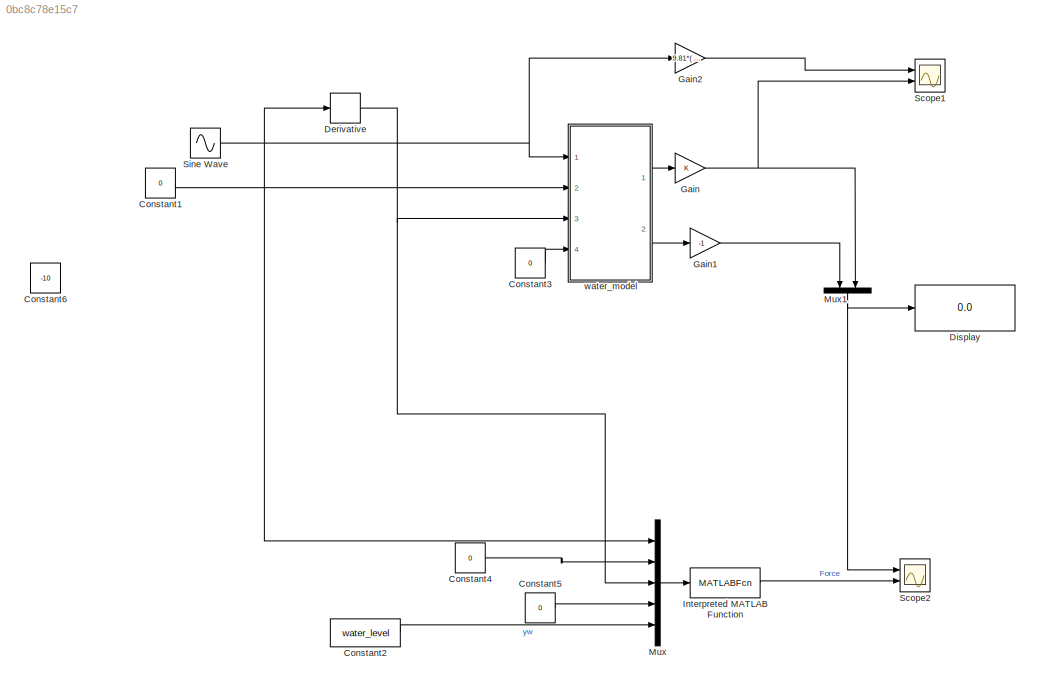
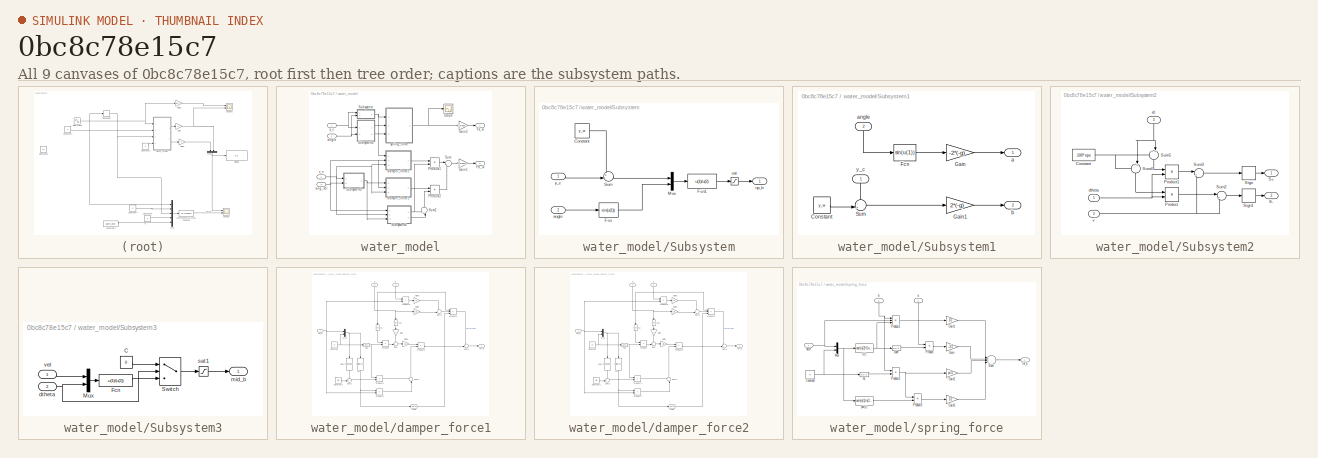
[diagram: thumbnail index - all 9 canvases of the model, root first then tree order]
MODEL slx_0bc8c78e15c7
KIND model
BLOCK [Constant] Constant1
  Value = 0
BLOCK [Constant] Constant2
  Value = water_level
BLOCK [Constant] Constant3
  Value = 0
BLOCK [Constant] Constant4
  Value = 0
BLOCK [Constant] Constant5
  Value = 0
BLOCK [Constant] Constant6
  Value = -10
BLOCK [Derivative] Derivative
BLOCK [Display] Display
  Decimation = 1
  Lockdown = off
  Ports = [1]
BLOCK [Gain] Gain
  OutDataTypeStr = Inherit: Inherit via internal rule
  ParamDataTypeStr = Inherit: Inherit via internal rule
  SaturateOnIntegerOverflow = off
BLOCK [Gain] Gain1
  Gain = -1
  OutDataTypeStr = Inherit: Inherit via internal rule
  ParamDataTypeStr = Inherit: Inherit via internal rule
  SaturateOnIntegerOverflow = off
BLOCK [Gain] Gain2
  Gain = 9.81*( pi*0.02^2 )*( 1000*0.703)
  OutDataTypeStr = Inherit: Inherit via internal rule
  ParamDataTypeStr = Inherit: Inherit via internal rule
  SaturateOnIntegerOverflow = off
BLOCK [MATLABFcn] Interpreted MATLAB Function
  MATLABFcn = p_water_model
  OutputDimensions = 2
  Ports = [1, 1]
BLOCK [Mux] Mux
  DisplayOption = bar
  Inputs = 5
  Ports = [5, 1]
BLOCK [Mux] Mux1
  DisplayOption = bar
  Inputs = 2
  Ports = [2, 1]
BLOCK [Scope] Scope1
  DataFormat = StructureWithTime
  Floating = off
  LegendLocations = 0.84035     0.90797     0.10969    0.025577\n0.84162     0.41782     0.10204    0.025577
  LimitDataPoints = off
  NumInputPorts = 2
  Ports = [2]
  SampleTime = 0
  ShowLegends = on
  YMax = 0.2~0
  YMin = 0.025~-0.017
BLOCK [Scope] Scope2
  DataFormat = StructureWithTime
  Floating = off
  LegendLocations = 0.86832     0.90842     0.05375     0.04439\n0.87219     0.41846     0.05875     0.04439
  LimitDataPoints = off
  NumInputPorts = 2
  Ports = [2]
  SampleTime = 0
  SaveName = ScopeData4
  ShowLegends = on
  TimeRange = 10
  YMax = 90~1
  YMin = -0~-1
BLOCK [Sin] Sine Wave
  Amplitude = 0.03
  Frequency = 50
  Ports = [0, 1]
  SampleTime = 0
BLOCK [SubSystem] water_model
  AncestorBlock = WaterRunner_lib/water_model
  FunctionWithSeparateData = off
  MaskHideContents = off
  MinAlgLoopOccurrences = off
  Opaque = off
  Ports = [4, 2]
  PropExecContextOutsideSubsystem = off
  RTWSystemCode = Auto
  RequestExecContextInheritance = off
BLOCK [Outport] water_model/Fb_w
  IconDisplay = Port number
  Port = 2
BLOCK [Outport] water_model/Fk_w
  IconDisplay = Port number
BLOCK [Gain] water_model/Gain1
  Gain = Cd*density
  OutDataTypeStr = Inherit: Inherit via internal rule
  ParamDataTypeStr = Inherit: Inherit via internal rule
  SaturateOnIntegerOverflow = off
BLOCK [Gain] water_model/Gain2
  Gain = Cd*density
  OutDataTypeStr = Inherit: Inherit via internal rule
  ParamDataTypeStr = Inherit: Inherit via internal rule
  SaturateOnIntegerOverflow = off
BLOCK [Product] water_model/Product1
  InputSameDT = off
  OutDataTypeStr = Inherit: Inherit via internal rule
  Ports = [2, 1]
  SaturateOnIntegerOverflow = off
BLOCK [Product] water_model/Product2
  InputSameDT = off
  OutDataTypeStr = Inherit: Inherit via internal rule
  Ports = [2, 1]
  SaturateOnIntegerOverflow = off
BLOCK [Scope] water_model/Scope
  DataFormat = StructureWithTime
  Floating = off
  NumInputPorts = 1
  Ports = [1]
  SampleTime = 0
  SaveName = ScopeData4
  ShowLegends = off
BLOCK [SubSystem] water_model/Subsystem
  FunctionWithSeparateData = off
  MaskHideContents = off
  MinAlgLoopOccurrences = off
  Opaque = off
  Ports = [2, 1]
  PropExecContextOutsideSubsystem = off
  RTWSystemCode = Auto
  RequestExecContextInheritance = off
BLOCK [Constant] water_model/Subsystem/Constant
  Value = y_w
BLOCK [Fcn] water_model/Subsystem/Fcn
  Expr = sin(u(1))
BLOCK [Fcn] water_model/Subsystem/Fcn1
  Expr = u(1)/u(2)
BLOCK [Mux] water_model/Subsystem/Mux
  DisplayOption = bar
  Inputs = 2
  Ports = [2, 1]
BLOCK [Sum] water_model/Subsystem/Sum
  IconShape = round
  InputSameDT = off
  Inputs = +-|
  OutDataTypeStr = Inherit: Inherit via internal rule
  Ports = [2, 1]
  SaturateOnIntegerOverflow = off
BLOCK [Inport] water_model/Subsystem/angle
  IconDisplay = Port number
  Port = 2
BLOCK [Saturate] water_model/Subsystem/sat
  InputPortMap = u0
  LowerLimit = -R
  Ports = [1, 1]
  UpperLimit = R
BLOCK [Outport] water_model/Subsystem/up_b
  IconDisplay = Port number
BLOCK [Inport] water_model/Subsystem/y_c
  IconDisplay = Port number
BLOCK [SubSystem] water_model/Subsystem1
  FunctionWithSeparateData = off
  MaskHideContents = off
  MinAlgLoopOccurrences = off
  Opaque = off
  Ports = [2, 2]
  PropExecContextOutsideSubsystem = off
  RTWSystemCode = Auto
  RequestExecContextInheritance = off
BLOCK [Constant] water_model/Subsystem1/Constant
  Value = y_w
BLOCK [Fcn] water_model/Subsystem1/Fcn
  Expr = sin(u(1))
BLOCK [Gain] water_model/Subsystem1/Gain
  Gain = -2*(-g)
  OutDataTypeStr = Inherit: Inherit via internal rule
  ParamDataTypeStr = Inherit: Inherit via internal rule
  SaturateOnIntegerOverflow = off
BLOCK [Gain] water_model/Subsystem1/Gain1
  Gain = 2*(-g)
  OutDataTypeStr = Inherit: Inherit via internal rule
  ParamDataTypeStr = Inherit: Inherit via internal rule
  SaturateOnIntegerOverflow = off
BLOCK [Sum] water_model/Subsystem1/Sum
  IconShape = round
  InputSameDT = off
  Inputs = -+|
  OutDataTypeStr = Inherit: Inherit via internal rule
  Ports = [2, 1]
  SaturateOnIntegerOverflow = off
BLOCK [Outport] water_model/Subsystem1/a
  IconDisplay = Port number
BLOCK [Inport] water_model/Subsystem1/angle
  IconDisplay = Port number
  Port = 2
BLOCK [Outport] water_model/Subsystem1/b
  IconDisplay = Port number
  Port = 2
BLOCK [Inport] water_model/Subsystem1/y_c
  IconDisplay = Port number
BLOCK [SubSystem] water_model/Subsystem2
  FunctionWithSeparateData = off
  MaskHideContents = off
  MinAlgLoopOccurrences = off
  Opaque = off
  Ports = [3, 2]
  PropExecContextOutsideSubsystem = off
  RTWSystemCode = Auto
  RequestExecContextInheritance = off
BLOCK [Constant] water_model/Subsystem2/Constant
  Value = 100*eps
BLOCK [Product] water_model/Subsystem2/Product
  InputSameDT = off
  OutDataTypeStr = Inherit: Inherit via internal rule
  Ports = [2, 1]
  SaturateOnIntegerOverflow = off
BLOCK [Product] water_model/Subsystem2/Product1
  InputSameDT = off
  OutDataTypeStr = Inherit: Inherit via internal rule
  Ports = [2, 1]
  SaturateOnIntegerOverflow = off
BLOCK [Outport] water_model/Subsystem2/S+
  IconDisplay = Port number
BLOCK [Outport] water_model/Subsystem2/S-
  IconDisplay = Port number
  Port = 2
BLOCK [Signum] water_model/Subsystem2/Sign
BLOCK [Signum] water_model/Subsystem2/Sign1
BLOCK [Sum] water_model/Subsystem2/Sum2
  IconShape = round
  InputSameDT = off
  Inputs = |++
  OutDataTypeStr = Inherit: Inherit via internal rule
  Ports = [2, 1]
  SaturateOnIntegerOverflow = off
BLOCK [Sum] water_model/Subsystem2/Sum3
  IconShape = round
  InputSameDT = off
  Inputs = |++
  OutDataTypeStr = Inherit: Inherit via internal rule
  Ports = [2, 1]
  SaturateOnIntegerOverflow = off
BLOCK [Sum] water_model/Subsystem2/Sum4
  IconShape = round
  InputSameDT = off
  Inputs = -+|
  OutDataTypeStr = Inherit: Inherit via internal rule
  Ports = [2, 1]
  SaturateOnIntegerOverflow = off
BLOCK [Sum] water_model/Subsystem2/Sum5
  IconShape = round
  InputSameDT = off
  Inputs = ++|
  OutDataTypeStr = Inherit: Inherit via internal rule
  Ports = [2, 1]
  SaturateOnIntegerOverflow = off
BLOCK [Inport] water_model/Subsystem2/dtheta
  IconDisplay = Port number
BLOCK [Inport] water_model/Subsystem2/r0
  IconDisplay = Port number
  Port = 3
BLOCK [Inport] water_model/Subsystem2/v
  IconDisplay = Port number
  Port = 2
BLOCK [SubSystem] water_model/Subsystem3
  FunctionWithSeparateData = off
  MaskHideContents = off
  MinAlgLoopOccurrences = off
  Opaque = off
  Ports = [2, 1]
  PropExecContextOutsideSubsystem = off
  RTWSystemCode = Auto
  RequestExecContextInheritance = off
BLOCK [Constant] water_model/Subsystem3/C
  Value = 0
BLOCK [Fcn] water_model/Subsystem3/Fcn
  Expr = -u(1)/(u(2))
BLOCK [Mux] water_model/Subsystem3/Mux
  DisplayOption = bar
  Inputs = 2
  Ports = [2, 1]
BLOCK [Switch] water_model/Subsystem3/Switch
  InputSameDT = off
  SaturateOnIntegerOverflow = off
BLOCK [Inport] water_model/Subsystem3/dtheta
  IconDisplay = Port number
  Port = 2
BLOCK [Outport] water_model/Subsystem3/mid_b
  IconDisplay = Port number
BLOCK [Saturate] water_model/Subsystem3/sat1
  InputPortMap = u0
  LowerLimit = -R
  Ports = [1, 1]
  UpperLimit = R
BLOCK [Inport] water_model/Subsystem3/vel
  IconDisplay = Port number
BLOCK [Sum] water_model/Sum
  IconShape = round
  InputSameDT = off
  Inputs = |++
  OutDataTypeStr = Inherit: Inherit via internal rule
  Ports = [2, 1]
  SaturateOnIntegerOverflow = off
BLOCK [Sum] water_model/Sum2
  IconShape = round
  InputSameDT = off
  Inputs = -+|
  OutDataTypeStr = Inherit: Inherit via internal rule
  Ports = [2, 1]
  SaturateOnIntegerOverflow = off
BLOCK [Inport] water_model/ang_vel
  IconDisplay = Port number
  Port = 4
BLOCK [Inport] water_model/angle
  IconDisplay = Port number
  Port = 2
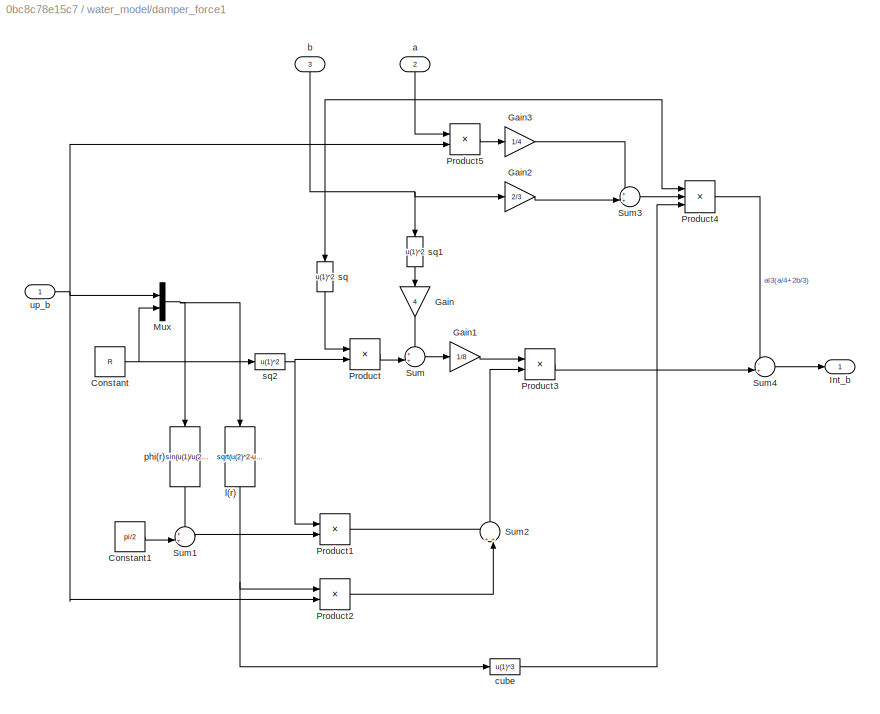
BLOCK [SubSystem] water_model/damper_force1
  FunctionWithSeparateData = off
  MaskHideContents = off
  MinAlgLoopOccurrences = off
  Opaque = off
  Ports = [3, 1]
  PropExecContextOutsideSubsystem = off
  RTWSystemCode = Auto
  RequestExecContextInheritance = off
BLOCK [Constant] water_model/damper_force1/Constant
  Value = R
BLOCK [Constant] water_model/damper_force1/Constant1
  Value = pi/2
BLOCK [Gain] water_model/damper_force1/Gain
  Gain = 4
  OutDataTypeStr = Inherit: Inherit via internal rule
  ParamDataTypeStr = Inherit: Inherit via internal rule
  SaturateOnIntegerOverflow = off
BLOCK [Gain] water_model/damper_force1/Gain1
  Gain = 1/8
  OutDataTypeStr = Inherit: Inherit via internal rule
  ParamDataTypeStr = Inherit: Inherit via internal rule
  SaturateOnIntegerOverflow = off
BLOCK [Gain] water_model/damper_force1/Gain2
  Gain = 2/3
  OutDataTypeStr = Inherit: Inherit via internal rule
  ParamDataTypeStr = Inherit: Inherit via internal rule
  SaturateOnIntegerOverflow = off
BLOCK [Gain] water_model/damper_force1/Gain3
  Gain = 1/4
  OutDataTypeStr = Inherit: Inherit via internal rule
  ParamDataTypeStr = Inherit: Inherit via internal rule
  SaturateOnIntegerOverflow = off
BLOCK [Outport] water_model/damper_force1/Int_b
  IconDisplay = Port number
BLOCK [Mux] water_model/damper_force1/Mux
  DisplayOption = bar
  Inputs = 2
  Ports = [2, 1]
BLOCK [Product] water_model/damper_force1/Product
  InputSameDT = off
  OutDataTypeStr = Inherit: Inherit via internal rule
  Ports = [2, 1]
  SaturateOnIntegerOverflow = off
BLOCK [Product] water_model/damper_force1/Product1
  InputSameDT = off
  OutDataTypeStr = Inherit: Inherit via internal rule
  Ports = [2, 1]
  SaturateOnIntegerOverflow = off
BLOCK [Product] water_model/damper_force1/Product2
  InputSameDT = off
  OutDataTypeStr = Inherit: Inherit via internal rule
  Ports = [2, 1]
  SaturateOnIntegerOverflow = off
BLOCK [Product] water_model/damper_force1/Product3
  InputSameDT = off
  OutDataTypeStr = Inherit: Inherit via internal rule
  Ports = [2, 1]
  SaturateOnIntegerOverflow = off
BLOCK [Product] water_model/damper_force1/Product4
  InputSameDT = off
  Inputs = 3
  OutDataTypeStr = Inherit: Inherit via internal rule
  Ports = [3, 1]
  SaturateOnIntegerOverflow = off
BLOCK [Product] water_model/damper_force1/Product5
  InputSameDT = off
  OutDataTypeStr = Inherit: Inherit via internal rule
  Ports = [2, 1]
  SaturateOnIntegerOverflow = off
BLOCK [Sum] water_model/damper_force1/Sum
  IconShape = round
  InputSameDT = off
  Inputs = ++|
  OutDataTypeStr = Inherit: Inherit via internal rule
  Ports = [2, 1]
  SaturateOnIntegerOverflow = off
BLOCK [Sum] water_model/damper_force1/Sum1
  IconShape = round
  InputSameDT = off
  Inputs = ++|
  OutDataTypeStr = Inherit: Inherit via internal rule
  Ports = [2, 1]
  SaturateOnIntegerOverflow = off
BLOCK [Sum] water_model/damper_force1/Sum2
  IconShape = round
  InputSameDT = off
  Inputs = ++|
  OutDataTypeStr = Inherit: Inherit via internal rule
  Ports = [2, 1]
  SaturateOnIntegerOverflow = off
BLOCK [Sum] water_model/damper_force1/Sum3
  IconShape = round
  InputSameDT = off
  Inputs = ++|
  OutDataTypeStr = Inherit: Inherit via internal rule
  Ports = [2, 1]
  SaturateOnIntegerOverflow = off
BLOCK [Sum] water_model/damper_force1/Sum4
  IconShape = round
  InputSameDT = off
  Inputs = -+|
  OutDataTypeStr = Inherit: Inherit via internal rule
  Ports = [2, 1]
  SaturateOnIntegerOverflow = off
BLOCK [Inport] water_model/damper_force1/a
  IconDisplay = Port number
  Port = 2
BLOCK [Inport] water_model/damper_force1/b
  IconDisplay = Port number
  Port = 3
BLOCK [Fcn] water_model/damper_force1/cube
  Expr = u(1)^3
BLOCK [Fcn] water_model/damper_force1/l(r)
  Expr = sqrt(u(2)^2-u(1)^2)
BLOCK [Fcn] water_model/damper_force1/phi(r)
  Expr = asin(u(1)/u(2))
BLOCK [Fcn] water_model/damper_force1/sq
  Expr = u(1)^2
BLOCK [Fcn] water_model/damper_force1/sq1
  Expr = u(1)^2
BLOCK [Fcn] water_model/damper_force1/sq2
  Expr = u(1)^2
BLOCK [Inport] water_model/damper_force1/up_b
  IconDisplay = Port number
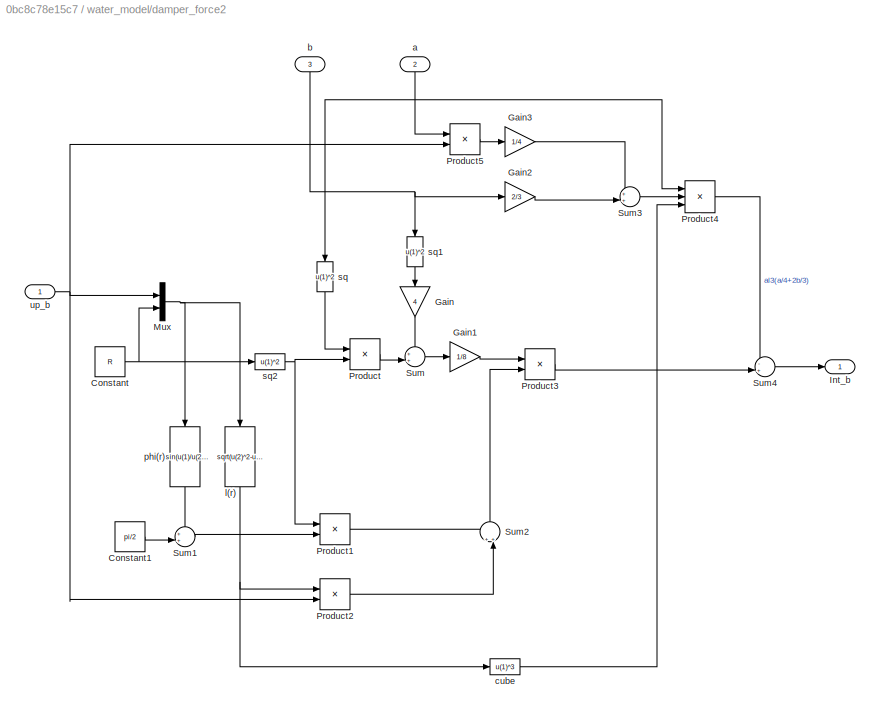
BLOCK [SubSystem] water_model/damper_force2
  FunctionWithSeparateData = off
  MaskHideContents = off
  MinAlgLoopOccurrences = off
  Opaque = off
  Ports = [3, 1]
  PropExecContextOutsideSubsystem = off
  RTWSystemCode = Auto
  RequestExecContextInheritance = off
BLOCK [Constant] water_model/damper_force2/Constant
  Value = R
BLOCK [Constant] water_model/damper_force2/Constant1
  Value = pi/2
BLOCK [Gain] water_model/damper_force2/Gain
  Gain = 4
  OutDataTypeStr = Inherit: Inherit via internal rule
  ParamDataTypeStr = Inherit: Inherit via internal rule
  SaturateOnIntegerOverflow = off
BLOCK [Gain] water_model/damper_force2/Gain1
  Gain = 1/8
  OutDataTypeStr = Inherit: Inherit via internal rule
  ParamDataTypeStr = Inherit: Inherit via internal rule
  SaturateOnIntegerOverflow = off
BLOCK [Gain] water_model/damper_force2/Gain2
  Gain = 2/3
  OutDataTypeStr = Inherit: Inherit via internal rule
  ParamDataTypeStr = Inherit: Inherit via internal rule
  SaturateOnIntegerOverflow = off
BLOCK [Gain] water_model/damper_force2/Gain3
  Gain = 1/4
  OutDataTypeStr = Inherit: Inherit via internal rule
  ParamDataTypeStr = Inherit: Inherit via internal rule
  SaturateOnIntegerOverflow = off
BLOCK [Outport] water_model/damper_force2/Int_b
  IconDisplay = Port number
BLOCK [Mux] water_model/damper_force2/Mux
  DisplayOption = bar
  Inputs = 2
  Ports = [2, 1]
BLOCK [Product] water_model/damper_force2/Product
  InputSameDT = off
  OutDataTypeStr = Inherit: Inherit via internal rule
  Ports = [2, 1]
  SaturateOnIntegerOverflow = off
BLOCK [Product] water_model/damper_force2/Product1
  InputSameDT = off
  OutDataTypeStr = Inherit: Inherit via internal rule
  Ports = [2, 1]
  SaturateOnIntegerOverflow = off
BLOCK [Product] water_model/damper_force2/Product2
  InputSameDT = off
  OutDataTypeStr = Inherit: Inherit via internal rule
  Ports = [2, 1]
  SaturateOnIntegerOverflow = off
BLOCK [Product] water_model/damper_force2/Product3
  InputSameDT = off
  OutDataTypeStr = Inherit: Inherit via internal rule
  Ports = [2, 1]
  SaturateOnIntegerOverflow = off
BLOCK [Product] water_model/damper_force2/Product4
  InputSameDT = off
  Inputs = 3
  OutDataTypeStr = Inherit: Inherit via internal rule
  Ports = [3, 1]
  SaturateOnIntegerOverflow = off
BLOCK [Product] water_model/damper_force2/Product5
  InputSameDT = off
  OutDataTypeStr = Inherit: Inherit via internal rule
  Ports = [2, 1]
  SaturateOnIntegerOverflow = off
BLOCK [Sum] water_model/damper_force2/Sum
  IconShape = round
  InputSameDT = off
  Inputs = ++|
  OutDataTypeStr = Inherit: Inherit via internal rule
  Ports = [2, 1]
  SaturateOnIntegerOverflow = off
BLOCK [Sum] water_model/damper_force2/Sum1
  IconShape = round
  InputSameDT = off
  Inputs = ++|
  OutDataTypeStr = Inherit: Inherit via internal rule
  Ports = [2, 1]
  SaturateOnIntegerOverflow = off
BLOCK [Sum] water_model/damper_force2/Sum2
  IconShape = round
  InputSameDT = off
  Inputs = ++|
  OutDataTypeStr = Inherit: Inherit via internal rule
  Ports = [2, 1]
  SaturateOnIntegerOverflow = off
BLOCK [Sum] water_model/damper_force2/Sum3
  IconShape = round
  InputSameDT = off
  Inputs = ++|
  OutDataTypeStr = Inherit: Inherit via internal rule
  Ports = [2, 1]
  SaturateOnIntegerOverflow = off
BLOCK [Sum] water_model/damper_force2/Sum4
  IconShape = round
  InputSameDT = off
  Inputs = -+|
  OutDataTypeStr = Inherit: Inherit via internal rule
  Ports = [2, 1]
  SaturateOnIntegerOverflow = off
BLOCK [Inport] water_model/damper_force2/a
  IconDisplay = Port number
  Port = 2
BLOCK [Inport] water_model/damper_force2/b
  IconDisplay = Port number
  Port = 3
BLOCK [Fcn] water_model/damper_force2/cube
  Expr = u(1)^3
BLOCK [Fcn] water_model/damper_force2/l(r)
  Expr = sqrt(u(2)^2-u(1)^2)
BLOCK [Fcn] water_model/damper_force2/phi(r)
  Expr = asin(u(1)/u(2))
BLOCK [Fcn] water_model/damper_force2/sq
  Expr = u(1)^2
BLOCK [Fcn] water_model/damper_force2/sq1
  Expr = u(1)^2
BLOCK [Fcn] water_model/damper_force2/sq2
  Expr = u(1)^2
BLOCK [Inport] water_model/damper_force2/up_b
  IconDisplay = Port number
BLOCK [SubSystem] water_model/spring_force
  FunctionWithSeparateData = off
  MaskHideContents = off
  MinAlgLoopOccurrences = off
  Opaque = off
  Ports = [3, 1]
  PropExecContextOutsideSubsystem = off
  RTWSystemCode = Auto
  RequestExecContextInheritance = off
BLOCK [Constant] water_model/spring_force/Constant
  Value = R
BLOCK [Gain] water_model/spring_force/Gain
  Gain = -1/3
  OutDataTypeStr = Inherit: Inherit via internal rule
  ParamDataTypeStr = Inherit: Inherit via internal rule
  SaturateOnIntegerOverflow = off
BLOCK [Gain] water_model/spring_force/Gain1
  Gain = 1/2
  OutDataTypeStr = Inherit: Inherit via internal rule
  ParamDataTypeStr = Inherit: Inherit via internal rule
  SaturateOnIntegerOverflow = off
BLOCK [Gain] water_model/spring_force/Gain2
  Gain = pi/4
  OutDataTypeStr = Inherit: Inherit via internal rule
  ParamDataTypeStr = Inherit: Inherit via internal rule
  SaturateOnIntegerOverflow = off
BLOCK [Gain] water_model/spring_force/Gain3
  Gain = 1/2
  OutDataTypeStr = Inherit: Inherit via internal rule
  ParamDataTypeStr = Inherit: Inherit via internal rule
  SaturateOnIntegerOverflow = off
BLOCK [Outport] water_model/spring_force/Int_k
  IconDisplay = Port number
BLOCK [Mux] water_model/spring_force/Mux
  DisplayOption = bar
  Inputs = 2
  Ports = [2, 1]
BLOCK [Product] water_model/spring_force/Product
  InputSameDT = off
  OutDataTypeStr = Inherit: Inherit via internal rule
  Ports = [2, 1]
  SaturateOnIntegerOverflow = off
BLOCK [Product] water_model/spring_force/Product1
  InputSameDT = off
  Inputs = 3
  OutDataTypeStr = Inherit: Inherit via internal rule
  Ports = [3, 1]
  SaturateOnIntegerOverflow = off
BLOCK [Product] water_model/spring_force/Product2
  InputSameDT = off
  OutDataTypeStr = Inherit: Inherit via internal rule
  Ports = [2, 1]
  SaturateOnIntegerOverflow = off
BLOCK [Product] water_model/spring_force/Product3
  InputSameDT = off
  OutDataTypeStr = Inherit: Inherit via internal rule
  Ports = [2, 1]
  SaturateOnIntegerOverflow = off
BLOCK [Sum] water_model/spring_force/Sum
  IconShape = round
  InputSameDT = off
  Inputs = |++++|
  OutDataTypeStr = Inherit: Inherit via internal rule
  Ports = [4, 1]
  SaturateOnIntegerOverflow = off
BLOCK [Inport] water_model/spring_force/a
  IconDisplay = Port number
  Port = 2
BLOCK [Inport] water_model/spring_force/b
  IconDisplay = Port number
  Port = 3
BLOCK [Fcn] water_model/spring_force/cube
  Expr = u(1)^3
BLOCK [Fcn] water_model/spring_force/l(r)
  Expr = sqrt(u(2)^2-u(1)^2)
BLOCK [Fcn] water_model/spring_force/phi(r)
  Expr = asin(u(1)/u(2))
BLOCK [Fcn] water_model/spring_force/sq
  Expr = u(1)^2
BLOCK [Inport] water_model/spring_force/up_b
  IconDisplay = Port number
BLOCK [Inport] water_model/v_n
  IconDisplay = Port number
  Port = 3
BLOCK [Inport] water_model/y_c
  IconDisplay = Port number
LINE Constant1:1 -> water_model:2
LINE Constant2:1 -> Mux:5
LINE Constant3:1 -> water_model:4
LINE Constant4:1 -> Mux:2
LINE Constant5:1 -> Mux:4
NET Derivative:1 -> Mux:3, water_model:3
LINE Gain1:1 -> Mux1:1
LINE Gain2:1 -> Scope1:1
NET Gain:1 -> Mux1:2, Scope1:2
LINE Interpreted MATLAB Function:1 -> Scope2:2
NET Mux1:1 -> Display:1, Scope2:1
LINE Mux:1 -> Interpreted MATLAB Function:1
NET Sine Wave:1 -> Derivative:1, Gain2:1, Mux:1, water_model:1
LINE water_model:1 -> Gain:1
LINE water_model:2 -> Gain1:1
note: NET lines group one-source signal fan-out (src -> all destinations, sorted); 1:1 wires keep LINE
